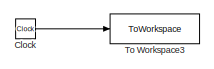
[diagram: root canvas - part 1/3, top right region]
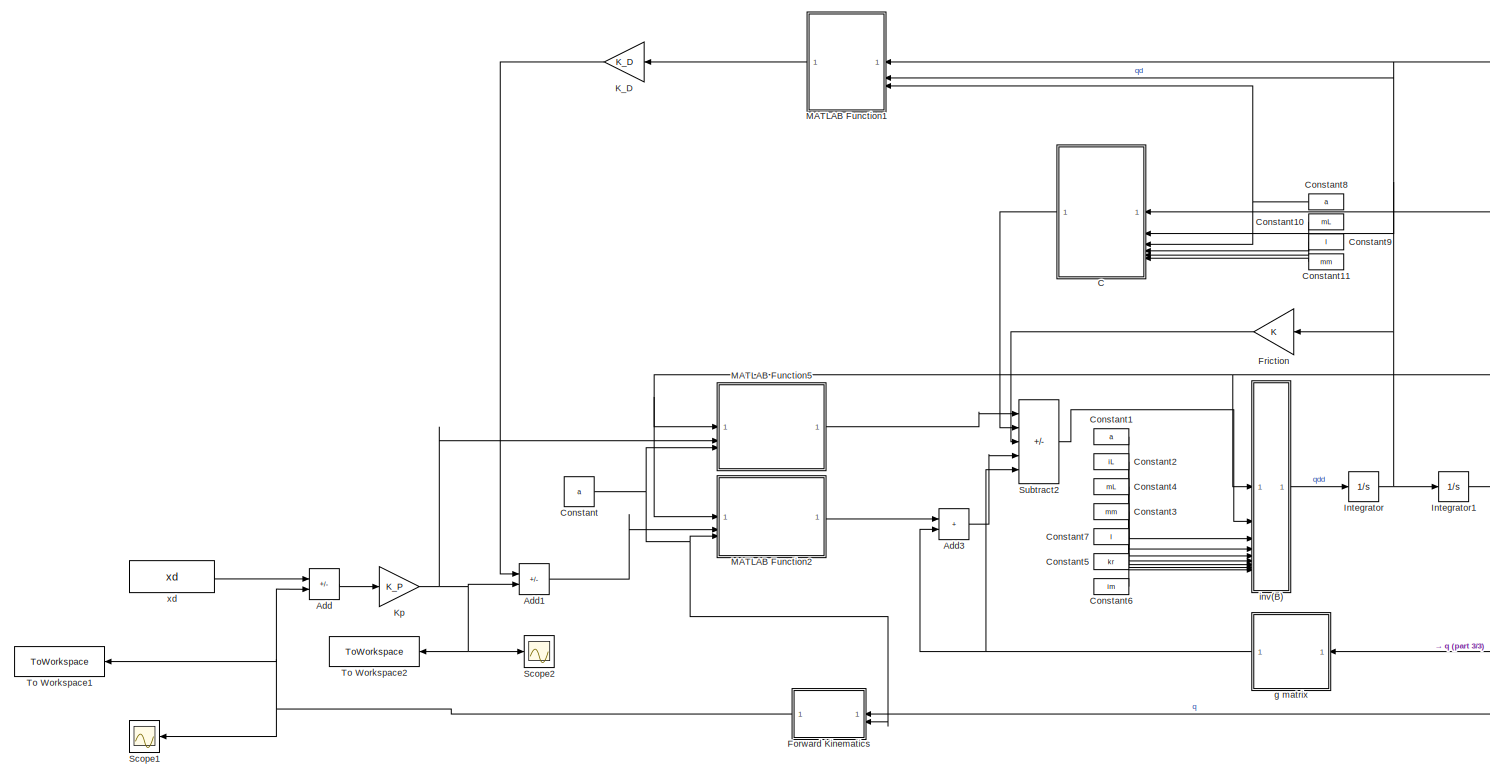
[diagram: root canvas - part 2/3, most of the canvas]
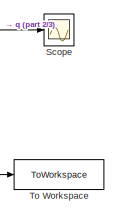
[diagram: root canvas - part 3/3, bottom right region]
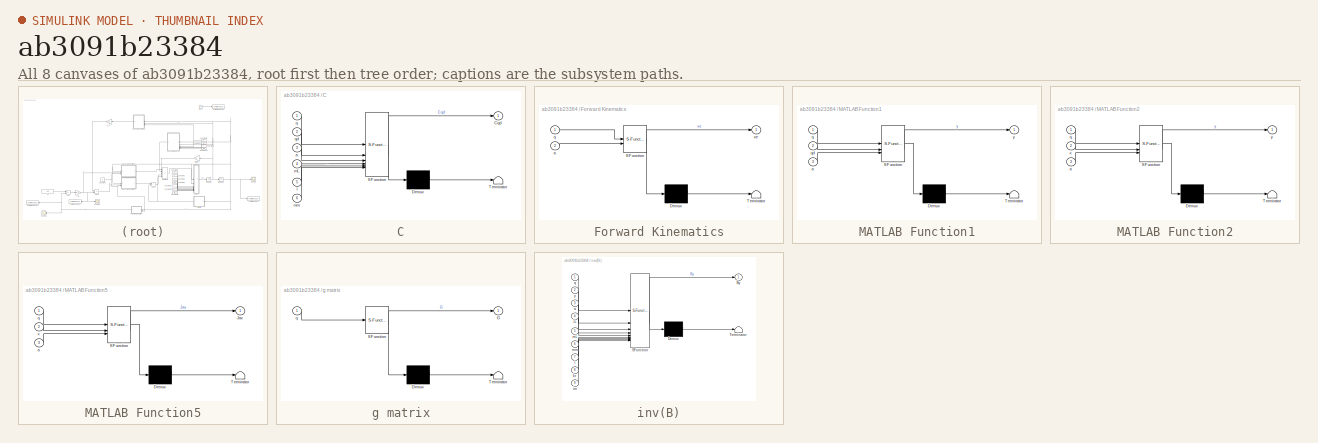
[diagram: thumbnail index - all 8 canvases of the model, root first then tree order]
MODEL slx_ab3091b23384
KIND model
CONFIG AbsTol = auto
CONFIG EnableMultiTasking = off
CONFIG FixedStep = auto
CONFIG MaxStep = auto
CONFIG MinStep = auto
CONFIG RelTol = 1e-3
CONFIG SampleTimeConstraint = Unconstrained
CONFIG SolverName = VariableStepAuto
CONFIG StartTime = 0.0
CONFIG StopTime = 10.0
BLOCK [Sum] Add
  IconShape = rectangular
  Inputs = +-
BLOCK [Sum] Add1
  IconShape = rectangular
  Inputs = -+
BLOCK [Sum] Add3
  IconShape = rectangular
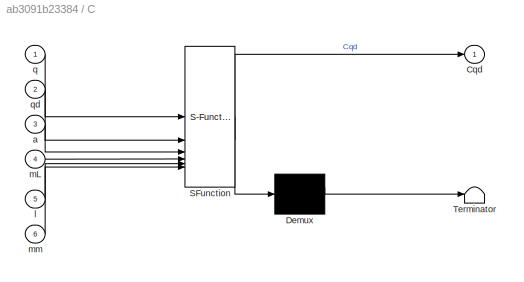
BLOCK [SubSystem] C
  ErrorFcn = Stateflow.Translate.translate
  NameLocation = top
  PermitHierarchicalResolution = ExplicitOnly
  SFBlockType = MATLAB Function
  TreatAsAtomicUnit = on
BLOCK [Demux] C/ Demux 
  Outputs = 1
BLOCK [S-Function] C/ SFunction 
  EnableBusSupport = on
  FunctionName = sf_sfun
  PortCounts = [6 2]
  SFcnIsStateOwnerBlock = off
  SFunctionDeploymentMode = off
  Tag = Stateflow S-Function 5
BLOCK [Terminator] C/ Terminator 
BLOCK [Outport] C/Cqd
BLOCK [Inport] C/a
  Port = 3
BLOCK [Inport] C/l
  Port = 5
BLOCK [Inport] C/mL
  Port = 4
BLOCK [Inport] C/mm
  Port = 6
BLOCK [Inport] C/q
BLOCK [Inport] C/qd
  Port = 2
BLOCK [Clock] Clock
BLOCK [Constant] Constant
  SampleTime = Ts
  Value = a
BLOCK [Constant] Constant1
  SampleTime = Ts
  Value = a
BLOCK [Constant] Constant10
  NameLocation = top
  SampleTime = Ts
  Value = mL
BLOCK [Constant] Constant11
  NameLocation = top
  SampleTime = Ts
  Value = mm
BLOCK [Constant] Constant2
  SampleTime = Ts
  Value = iL
BLOCK [Constant] Constant3
  SampleTime = Ts
  Value = mm
BLOCK [Constant] Constant4
  SampleTime = Ts
  Value = mL
BLOCK [Constant] Constant5
  SampleTime = Ts
  Value = kr
BLOCK [Constant] Constant6
  SampleTime = Ts
  Value = im
BLOCK [Constant] Constant7
  SampleTime = Ts
  Value = l
BLOCK [Constant] Constant8
  NameLocation = top
  SampleTime = Ts
  Value = a
BLOCK [Constant] Constant9
  NameLocation = top
  SampleTime = Ts
  Value = l
BLOCK [SubSystem] Forward Kinematics
  ErrorFcn = Stateflow.Translate.translate
  LibrarySourceBlock = simulink/User-Defined\nFunctions/MATLAB Function
  NameLocation = top
  PermitHierarchicalResolution = ExplicitOnly
  SFBlockType = MATLAB Function
  TreatAsAtomicUnit = on
BLOCK [Demux] Forward Kinematics/ Demux 
  Outputs = 1
BLOCK [S-Function] Forward Kinematics/ SFunction 
  EnableBusSupport = on
  FunctionName = sf_sfun
  PortCounts = [2 2]
  SFcnIsStateOwnerBlock = off
  SFunctionDeploymentMode = off
  Tag = Stateflow S-Function 7
BLOCK [Terminator] Forward Kinematics/ Terminator 
BLOCK [Inport] Forward Kinematics/a
  Port = 2
BLOCK [Inport] Forward Kinematics/q
BLOCK [Outport] Forward Kinematics/xe
BLOCK [Gain] Friction
  NameLocation = top
BLOCK [Integrator] Integrator
  InitialCondition = [0; 0;0]
BLOCK [Integrator] Integrator1
  InitialCondition = qi
BLOCK [Gain] K_D
  Gain = K_D
  NameLocation = top
BLOCK [Gain] Kp
  Gain = K_P
BLOCK [SubSystem] MATLAB Function1
  ErrorFcn = Stateflow.Translate.translate
  NameLocation = top
  PermitHierarchicalResolution = ExplicitOnly
  SFBlockType = MATLAB Function
  TreatAsAtomicUnit = on
BLOCK [Demux] MATLAB Function1/ Demux 
  Outputs = 1
BLOCK [S-Function] MATLAB Function1/ SFunction 
  EnableBusSupport = on
  FunctionName = sf_sfun
  PortCounts = [3 2]
  SFcnIsStateOwnerBlock = off
  SFunctionDeploymentMode = off
  Tag = Stateflow S-Function 1
BLOCK [Terminator] MATLAB Function1/ Terminator 
BLOCK [Inport] MATLAB Function1/a
  Port = 3
BLOCK [Inport] MATLAB Function1/q
BLOCK [Inport] MATLAB Function1/qd
  Port = 2
BLOCK [Outport] MATLAB Function1/y
BLOCK [SubSystem] MATLAB Function2
  ErrorFcn = Stateflow.Translate.translate
  LibrarySourceBlock = simulink/User-Defined\nFunctions/MATLAB Function
  PermitHierarchicalResolution = ExplicitOnly
  SFBlockType = MATLAB Function
  TreatAsAtomicUnit = on
BLOCK [Demux] MATLAB Function2/ Demux 
  Outputs = 1
BLOCK [S-Function] MATLAB Function2/ SFunction 
  EnableBusSupport = on
  FunctionName = sf_sfun
  PortCounts = [3 2]
  SFcnIsStateOwnerBlock = off
  SFunctionDeploymentMode = off
  Tag = Stateflow S-Function 9
BLOCK [Terminator] MATLAB Function2/ Terminator 
BLOCK [Inport] MATLAB Function2/a
  Port = 3
BLOCK [Inport] MATLAB Function2/q
BLOCK [Inport] MATLAB Function2/x
  Port = 2
BLOCK [Outport] MATLAB Function2/y
BLOCK [SubSystem] MATLAB Function5
  ErrorFcn = Stateflow.Translate.translate
  PermitHierarchicalResolution = ExplicitOnly
  SFBlockType = MATLAB Function
  TreatAsAtomicUnit = on
BLOCK [Demux] MATLAB Function5/ Demux 
  Outputs = 1
BLOCK [S-Function] MATLAB Function5/ SFunction 
  EnableBusSupport = on
  FunctionName = sf_sfun
  PortCounts = [3 2]
  SFcnIsStateOwnerBlock = off
  SFunctionDeploymentMode = off
  Tag = Stateflow S-Function 3
BLOCK [Terminator] MATLAB Function5/ Terminator 
BLOCK [Outport] MATLAB Function5/Jax
BLOCK [Inport] MATLAB Function5/a
  Port = 3
BLOCK [Inport] MATLAB Function5/q
BLOCK [Inport] MATLAB Function5/x
  Port = 2
BLOCK [Scope] Scope
  Floating = off
  NumInputPorts = 1
  ScopeSpecificationString = Simulink.scopes.TimeScopeBlockCfg('CurrentConfiguration', extmgr.ConfigurationSet(extmgr.Configuration('Core','General UI',true),extmgr.Configuration('Core','Source UI',true),extmgr.Configuration('Sources','WiredSimulink',true,'DataLoggingVariableName','ScopeData1'),extmgr.Configuration('Visuals','Time Domain',true,'SerializedDisplays',{struct('MinYLimReal','-4.53162','MaxYLimReal','3.50976','YLab...<+1455ch>
BLOCK [Scope] Scope1
  Floating = off
  NameLocation = top
  NumInputPorts = 1
  ScopeSpecificationString = Simulink.scopes.TimeScopeBlockCfg('CurrentConfiguration', extmgr.ConfigurationSet(extmgr.Configuration('Core','General UI',true),extmgr.Configuration('Core','Source UI',true),extmgr.Configuration('Sources','WiredSimulink',true,'DataLoggingVariableName','ScopeData2'),extmgr.Configuration('Visuals','Time Domain',true,'SerializedDisplays',{struct('MinYLimReal','-0.2898','MaxYLimReal','2.60819','YLabe...<+1423ch>
BLOCK [Scope] Scope2
  Floating = off
  NumInputPorts = 1
  ScopeSpecificationString = Simulink.scopes.TimeScopeBlockCfg('CurrentConfiguration', extmgr.ConfigurationSet(extmgr.Configuration('Core','General UI',true),extmgr.Configuration('Core','Source UI',true),extmgr.Configuration('Sources','WiredSimulink',true),extmgr.Configuration('Visuals','Time Domain',true,'SerializedDisplays',{struct('MinYLimReal','-26.52492','MaxYLimReal','6.88512','YLabelReal','','MinYLimMag','0.00000','Max...<+1342ch>
BLOCK [Sum] Subtract2
  IconShape = rectangular
  Inputs = ---+-
BLOCK [ToWorkspace] To Workspace
  FixptAsFi = on
  MaxDataPoints = inf
  SampleTime = Ts
  Save2DSignal = 2-D array (concatenate along first dimension)
  VariableName = q
BLOCK [ToWorkspace] To Workspace1
  FixptAsFi = on
  MaxDataPoints = inf
  NameLocation = top
  SampleTime = Ts
  Save2DSignal = 2-D array (concatenate along first dimension)
  VariableName = xe
BLOCK [ToWorkspace] To Workspace2
  FixptAsFi = on
  MaxDataPoints = inf
  NameLocation = top
  SampleTime = Ts
  Save2DSignal = 2-D array (concatenate along first dimension)
  VariableName = f
BLOCK [ToWorkspace] To Workspace3
  FixptAsFi = on
  MaxDataPoints = inf
  SampleTime = Ts
  Save2DSignal = 2-D array (concatenate along first dimension)
  VariableName = time
BLOCK [SubSystem] g matrix
  ErrorFcn = Stateflow.Translate.translate
  NameLocation = top
  PermitHierarchicalResolution = ExplicitOnly
  SFBlockType = MATLAB Function
  TreatAsAtomicUnit = on
BLOCK [Demux] g matrix/ Demux 
  Outputs = 1
BLOCK [S-Function] g matrix/ SFunction 
  EnableBusSupport = on
  FunctionName = sf_sfun
  PortCounts = [1 2]
  SFcnIsStateOwnerBlock = off
  SFunctionDeploymentMode = off
  Tag = Stateflow S-Function 6
BLOCK [Terminator] g matrix/ Terminator 
BLOCK [Outport] g matrix/G
BLOCK [Inport] g matrix/q
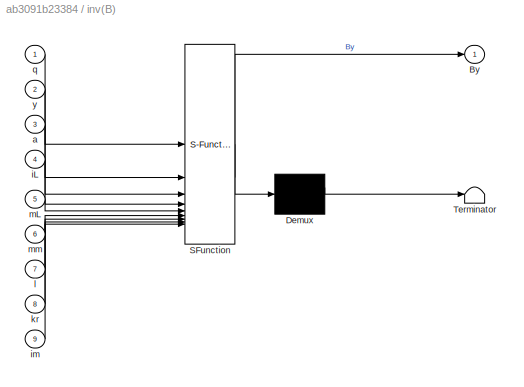
BLOCK [SubSystem] inv(B)
  ErrorFcn = Stateflow.Translate.translate
  PermitHierarchicalResolution = ExplicitOnly
  SFBlockType = MATLAB Function
  TreatAsAtomicUnit = on
BLOCK [Demux] inv(B)/ Demux 
  Outputs = 1
BLOCK [S-Function] inv(B)/ SFunction 
  EnableBusSupport = on
  FunctionName = sf_sfun
  PortCounts = [9 2]
  SFcnIsStateOwnerBlock = off
  SFunctionDeploymentMode = off
  Tag = Stateflow S-Function 4
BLOCK [Terminator] inv(B)/ Terminator 
BLOCK [Outport] inv(B)/By
BLOCK [Inport] inv(B)/a
  Port = 3
BLOCK [Inport] inv(B)/iL
  Port = 4
BLOCK [Inport] inv(B)/im
  Port = 9
BLOCK [Inport] inv(B)/kr
  Port = 8
BLOCK [Inport] inv(B)/l
  Port = 7
BLOCK [Inport] inv(B)/mL
  Port = 5
BLOCK [Inport] inv(B)/mm
  Port = 6
BLOCK [Inport] inv(B)/q
BLOCK [Inport] inv(B)/y
  Port = 2
BLOCK [Constant] xd
  SampleTime = Ts
  Value = xd
LINE Add1:1 -> MATLAB Function2:2
LINE Add3:1 -> Subtract2:4
LINE Add:1 -> Kp:1
LINE C:1 -> Subtract2:2
LINE Clock:1 -> To Workspace3:1
LINE Constant10:1 -> C:4
LINE Constant11:1 -> C:6
LINE Constant1:1 -> inv(B):3
LINE Constant2:1 -> inv(B):4
LINE Constant3:1 -> inv(B):6
LINE Constant4:1 -> inv(B):5
LINE Constant5:1 -> inv(B):8
LINE Constant6:1 -> inv(B):9
LINE Constant7:1 -> inv(B):7
NET Constant8:1 -> C:3, MATLAB Function1:3
LINE Constant9:1 -> C:5
NET Constant:1 -> Forward Kinematics:2, MATLAB Function2:3, MATLAB Function5:3
NET Forward Kinematics:1 -> Add:2, Scope1:1, To Workspace1:1
LINE Friction:1 -> Subtract2:3
NET Integrator1:1 -> C:1, Forward Kinematics:1, MATLAB Function1:1, MATLAB Function2:1, MATLAB Function5:1, Scope:1, To Workspace:1, g matrix:1, inv(B):1
NET Integrator:1 -> C:2, Friction:1, Integrator1:1, MATLAB Function1:2
LINE K_D:1 -> Add1:1
NET Kp:1 -> Add1:2, MATLAB Function5:2, Scope2:1, To Workspace2:1
LINE MATLAB Function1:1 -> K_D:1
LINE MATLAB Function2:1 -> Add3:1
LINE MATLAB Function5:1 -> Subtract2:1
LINE Subtract2:1 -> inv(B):2
NET g matrix:1 -> Add3:2, Subtract2:5
LINE inv(B):1 -> Integrator:1
LINE xd:1 -> Add:1
note: NET lines group one-source signal fan-out (src -> all destinations, sorted); 1:1 wires keep LINE
CHART MATLAB Function1 states=1 transitions=1
  STATE_LABEL 'eML_blk_kernel()'
  STATE_LABEL 'SCRIPT:\nfunction y = Ja_qd(q,qd,a)\nJa = zeros(3,3);\nJa(1:2,3) = [-a(3)*sin(q(1)+q(2)+q(3));a(3)*cos(q(1)+q(2)+q(3))]; % [-a(3)*S123 ; a(3)*C123]\nJa(1:2,2) = [-a(2)*sin(q(1)+q(2));a(2)*cos(q(1)+q(2))] + Ja(1:2,3);% [-a(2)*S12-a(3)*S123 ;a(2)*C12+a(3)*C123]\nJa(1:2,1) = [-a(1)*sin(q(1));a(1)*cos(q(1))]+Ja(1:2,2);          % [-a(1)*s_1 - a(2)*S12 - a(3)*S123 ;a(1)*c_1 + a(2)*C12 + a(3)*C123]\nJa(3,:) =...<+23ch>'
CHART MATLAB Function5 states=1 transitions=1
  STATE_LABEL 'eML_blk_kernel()'
  STATE_LABEL 'SCRIPT:\nfunction Jax = J_x(q,x,a)\n\nJa = zeros(3,3);\nJa(1:2,3) = [-a(3)*sin(q(1)+q(2)+q(3));a(3)*cos(q(1)+q(2)+q(3))] ;   % [-a(3)*S123 ; a(3)*C123]\nJa(1:2,2) = [-a(2)*sin(q(1)+q(2));a(2)*cos(q(1)+q(2))] + Ja(1:2,3) ; % [-a(2)*S12-a(3)*S123 ;a(2)*C12+a(3)*C123]\nJa(1:2,1) = [-a(1)*sin(q(1));a(1)*cos(q(1))]+Ja(1:2,2)  ; % [-a(1)*s_1 - a(2)*S12 - a(3)*S123 ;a(1)*c_1 + a(2)*C12 + a(3)*C123]\nJa(3,:) = [...<+20ch>'
CHART inv(B) states=1 transitions=1
  STATE_LABEL 'eML_blk_kernel()'
  STATE_LABEL 'SCRIPT:\nfunction By = fcn(q,y,a,iL,mL,mm,l,kr,im)\n\nif nargin==1\n    q = [0.5*pi;0.5*pi,0.5*pi];\nend\n c = @(x) cos(x);\n s = @(x) sin(x);\n\nB11 = iL(1) + iL(2) + iL(3) + im(2) + im(3) + a(1)^2*mL(2) + a(1)^2*mL(3)...\n    + a(2)^2*mL(3) + a(1)^2*mm(2) + a(1)^2*mm(3) + a(2)^2*mm(3) + im(1)*kr(1)^2 ...\n    + l(1)^2*mL(1) + l(2)^2*mL(2) + l(3)^2*mL(3) + 2*a(1)*l(3)*mL(3)*c(q(2)...\n    + q(3)) + 2*a(1)*a(...<+984ch>'
CHART C states=1 transitions=1
  STATE_LABEL 'eML_blk_kernel()'
  STATE_LABEL 'SCRIPT:\nfunction Cqd = CMatrix_qd(q,qd,a,mL,l,mm)\n\n c = @(x) cos(x);\n s = @(x) sin(x);\n\n\nC11 = - a(1)*qd(2)*(a(2)*mL(3)*s(q(2)) + a(2)*mm(3)*s(q(2)) ...\n    + l(2)*mL(2)*s(q(2)) + l(3)*mL(3)*s(q(2) + q(3))) ...\n    - l(3)*mL(3)*qd(3)*(a(1)*s(q(2) + q(3)) + a(2)*s(q(3)));\n\nC12 = - a(1)*qd(1)*(a(2)*mL(3)*s(q(2)) + a(2)*mm(3)*s(q(2)) ...\n    + l(2)*mL(2)*s(q(2)) + l(3)*mL(3)*s(q(2) + q(3))) ...\n    -...<+1015ch>'
CHART g matrix states=1 transitions=1
  STATE_LABEL 'eML_blk_kernel()'
  STATE_LABEL 'SCRIPT:\nfunction G = GravityLoad(q)\n\n\nG = [0 ;0 ;0];\n'
CHART Forward Kinematics states=1 transitions=1
  STATE_LABEL 'eML_blk_kernel()'
  STATE_LABEL 'SCRIPT:\nfunction xe = fkine(q,a)\n\nxe = [a(1)*cos(q(1))+a(2)*cos(q(1)+q(2))+a(3)*cos(q(1)+q(2)+q(3)) a(1)*sin(q(1))+a(2)*sin(q(1)+q(2))+a(3)*sin(q(1)+q(2)+q(3)) 0];\n\n'
CHART MATLAB Function2 states=1 transitions=1
  STATE_LABEL 'eML_blk_kernel()'
  STATE_LABEL 'SCRIPT:\nfunction y = JT_x(q,x,a)\n\nJa = zeros(3,3);\nJa(1:2,3) = [-a(3)*sin(q(1)+q(2)+q(3));a(3)*cos(q(1)+q(2)+q(3))];    % [-a(3)*S123 ; a(3)*C123]\nJa(1:2,2) = [-a(2)*sin(q(1)+q(2));      a(2)*cos(q(1)+q(2))] + Ja(1:2,3);  % [-a(2)*S12-a(3)*S123 ;a(2)*C12+a(3)*C123]\nJa(1:2,1) = [-a(1)*sin(q(1));           a(1)*cos(q(1))]+Ja(1:2,2) ;             % [-a(1)*s_1 - a(2)*S12 - a(3)*S123 ;a(1)*c_1 + a(2)*C...<+46ch>'
CHART  states=0 transitions=0
CHART  states=0 transitions=0
CHART  states=0 transitions=0
CHART  states=0 transitions=0
CHART  states=0 transitions=0
CHART  states=0 transitions=0
CHART  states=0 transitions=0
